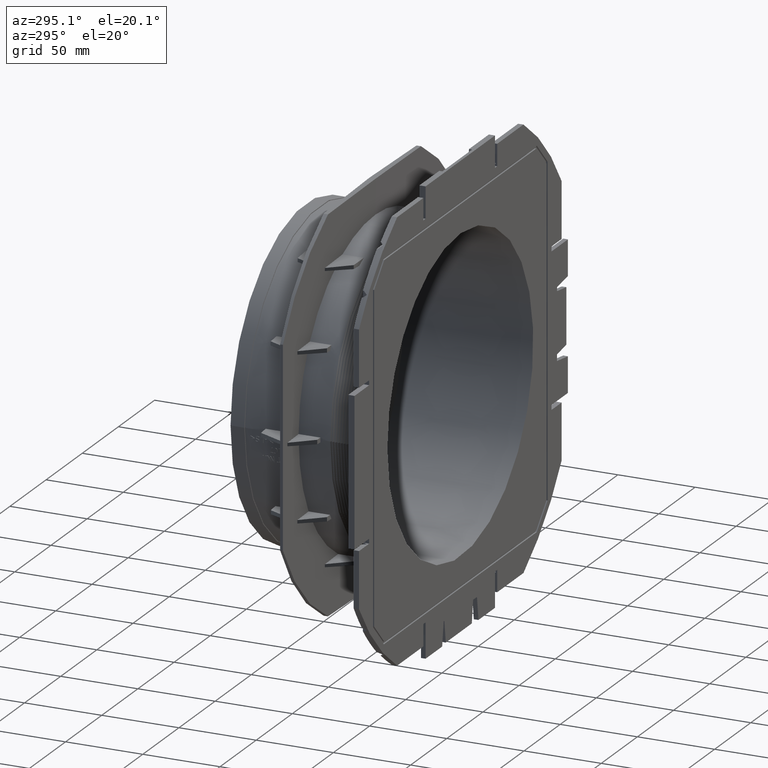
[diagram: clean part render]
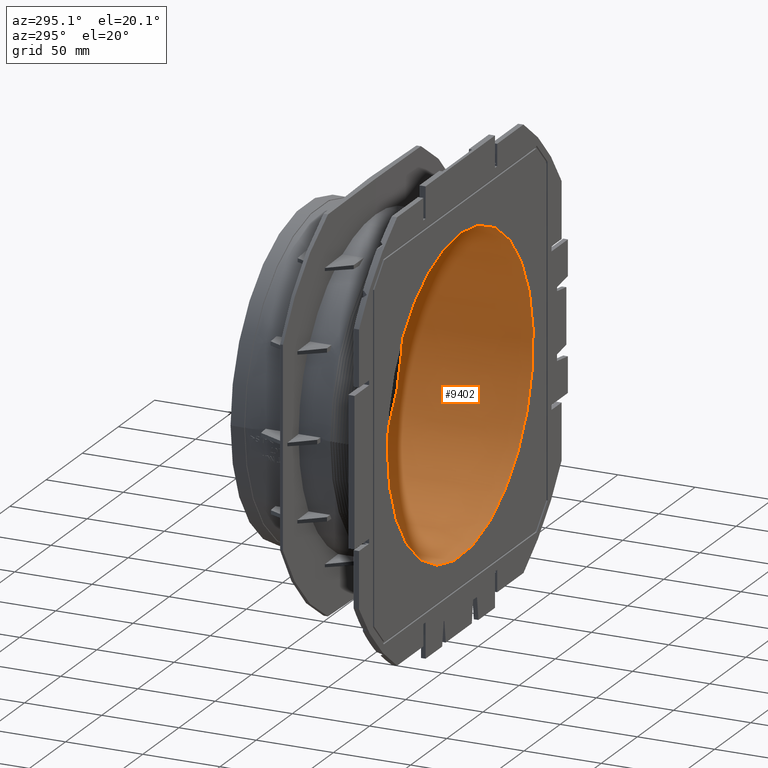
[diagram: same view with one face highlighted and labeled with its STEP entity id]
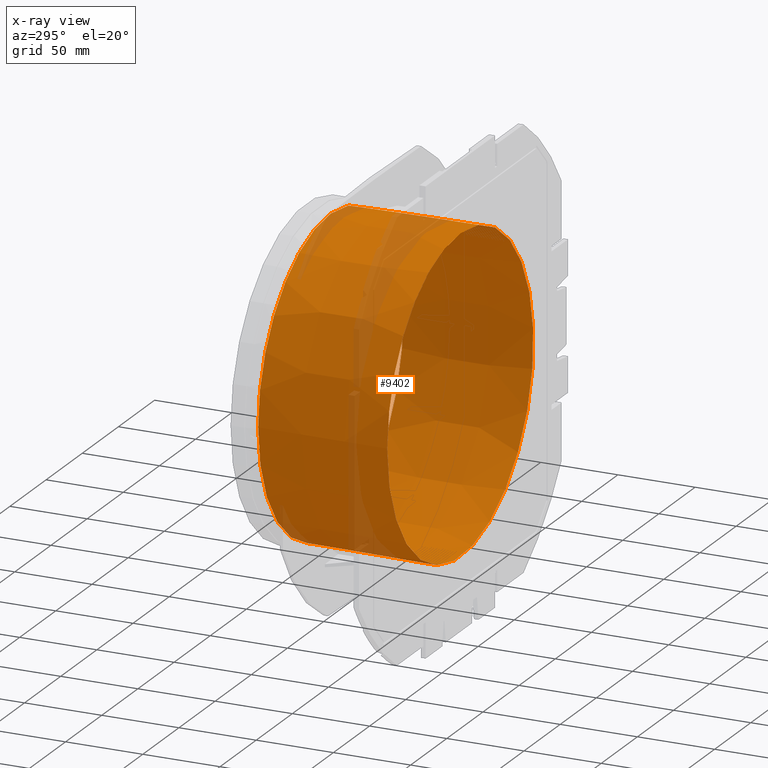
[diagram: x-ray of the same camera — body ghosted, the highlighted face saturated]
A machine part, auxiliary view. The second image highlights one B-rep face of the part: STEP entity #9402.
The next image is the same camera in x-ray: the body ghosted, the highlighted face saturated — about 10% of this face is hidden behind the body in this view.
In plain terms, the highlighted conical surface has half-angle 0.5 deg.
Its self-contained STEP definition (entity closure, byte-faithful):
#56=CONICAL_SURFACE('',#10123,100.15,0.00872664625997165);
#495=CIRCLE('',#9477,100.883056894424);
#496=CIRCLE('',#9478,100.883056894424);
#639=CIRCLE('',#10124,100.15);
#640=CIRCLE('',#10125,100.15);
#1094=FACE_OUTER_BOUND('',#1596,.T.);
#1596=EDGE_LOOP('',(#8010,#8011,#8012,#8013,#8014,#8015));
#2450=LINE('',#18228,#3309);
#3309=VECTOR('',#12286,100.15);
#3352=VERTEX_POINT('',#12410);
#3353=VERTEX_POINT('',#12411);
#4185=VERTEX_POINT('',#18225);
#4186=VERTEX_POINT('',#18226);
#4216=EDGE_CURVE('',#3352,#3353,#495,.F.);
#4217=EDGE_CURVE('',#3353,#3352,#496,.F.);
#5479=EDGE_CURVE('',#4185,#4186,#639,.T.);
#5480=EDGE_CURVE('',#4186,#3353,#2450,.T.);
#5481=EDGE_CURVE('',#4186,#4185,#640,.T.);
#8010=ORIENTED_EDGE('',*,*,#5479,.T.);
#8011=ORIENTED_EDGE('',*,*,#5480,.T.);
#8012=ORIENTED_EDGE('',*,*,#4216,.F.);
#8013=ORIENTED_EDGE('',*,*,#4217,.F.);
#8014=ORIENTED_EDGE('',*,*,#5480,.F.);
#8015=ORIENTED_EDGE('',*,*,#5481,.T.);
#9402=ADVANCED_FACE('',(#1094),#56,.F.);
#9477=AXIS2_PLACEMENT_3D('',#12412,#10174,#10175);
#9478=AXIS2_PLACEMENT_3D('',#12413,#10176,#10177);
#10123=AXIS2_PLACEMENT_3D('',#18224,#12282,#12283);
#10124=AXIS2_PLACEMENT_3D('',#18227,#12284,#12285);
#10125=AXIS2_PLACEMENT_3D('',#18229,#12287,#12288);
#10174=DIRECTION('center_axis',(0.,-1.,0.));
#10175=DIRECTION('ref_axis',(1.,0.,0.));
#10176=DIRECTION('center_axis',(0.,-1.,0.));
#10177=DIRECTION('ref_axis',(1.,0.,0.));
#12282=DIRECTION('center_axis',(0.,-1.,0.));
#12283=DIRECTION('ref_axis',(1.,0.,0.));
#12284=DIRECTION('center_axis',(0.,1.,0.));
#12285=DIRECTION('ref_axis',(1.,0.,0.));
#12286=DIRECTION('',(-0.00872653549837394,-0.999961923064171,-1.06869237657294E-18));
#12287=DIRECTION('center_axis',(0.,1.,0.));
#12288=DIRECTION('ref_axis',(1.,0.,0.));
#12410=CARTESIAN_POINT('',(0.,-88.5,100.883056894424));
#12411=CARTESIAN_POINT('',(-100.883056894424,-88.5,-1.23546112713956E-14));
#12412=CARTESIAN_POINT('Origin',(0.,-88.5,0.));
#12413=CARTESIAN_POINT('Origin',(0.,-88.5,0.));
#18224=CARTESIAN_POINT('Origin',(0.,-4.5,0.));
#18225=CARTESIAN_POINT('',(0.,-4.5,100.15));
#18226=CARTESIAN_POINT('',(-100.15,-4.5,-1.22648376934607E-14));
#18227=CARTESIAN_POINT('Origin',(0.,-4.5,0.));
#18228=CARTESIAN_POINT('',(-100.15,-4.5,-1.22648376934607E-14));
#18229=CARTESIAN_POINT('Origin',(0.,-4.5,0.));